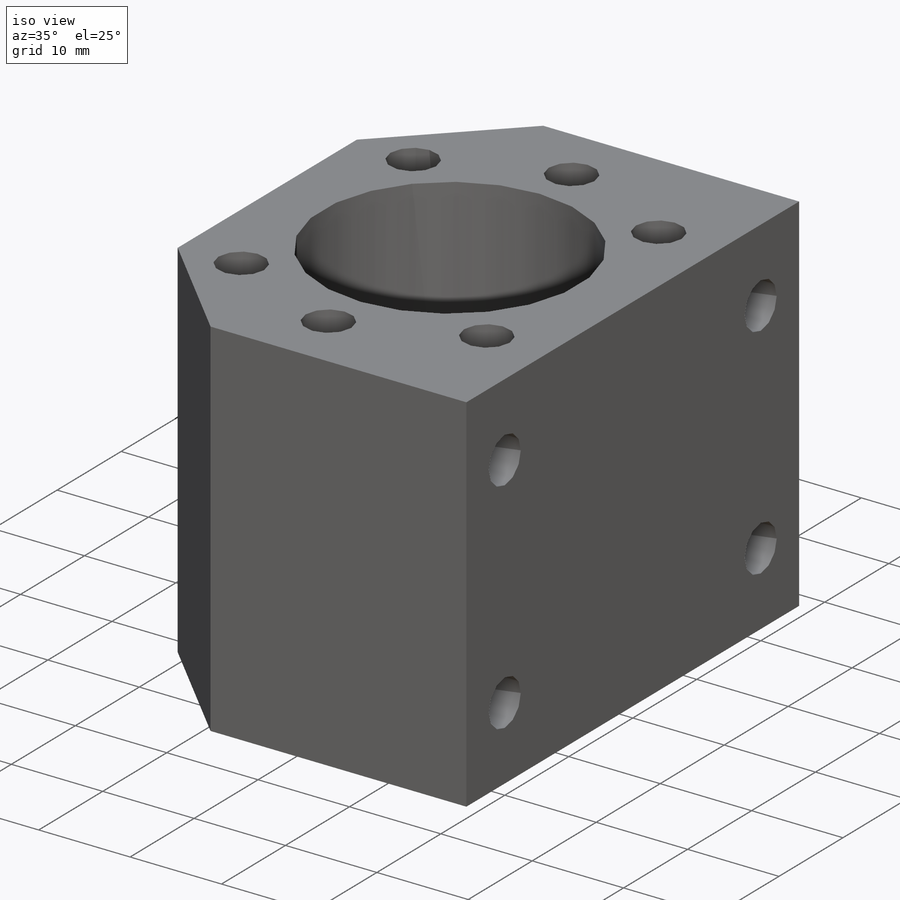
[diagram: iso view]
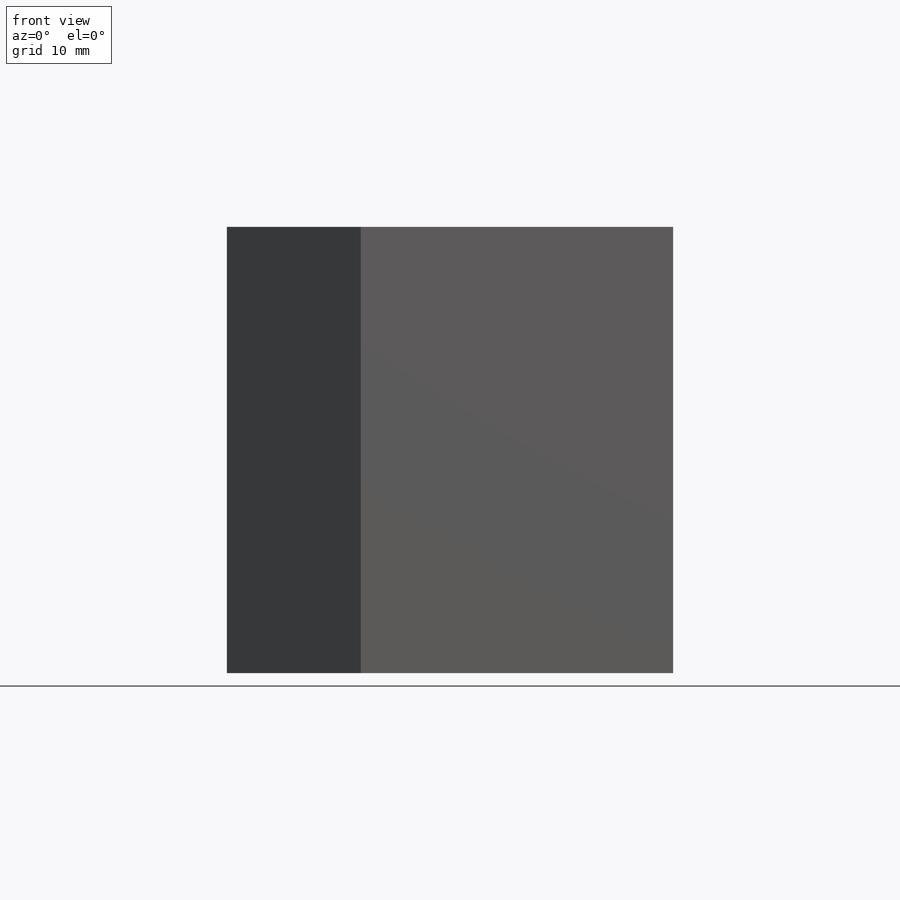
[diagram: front view]
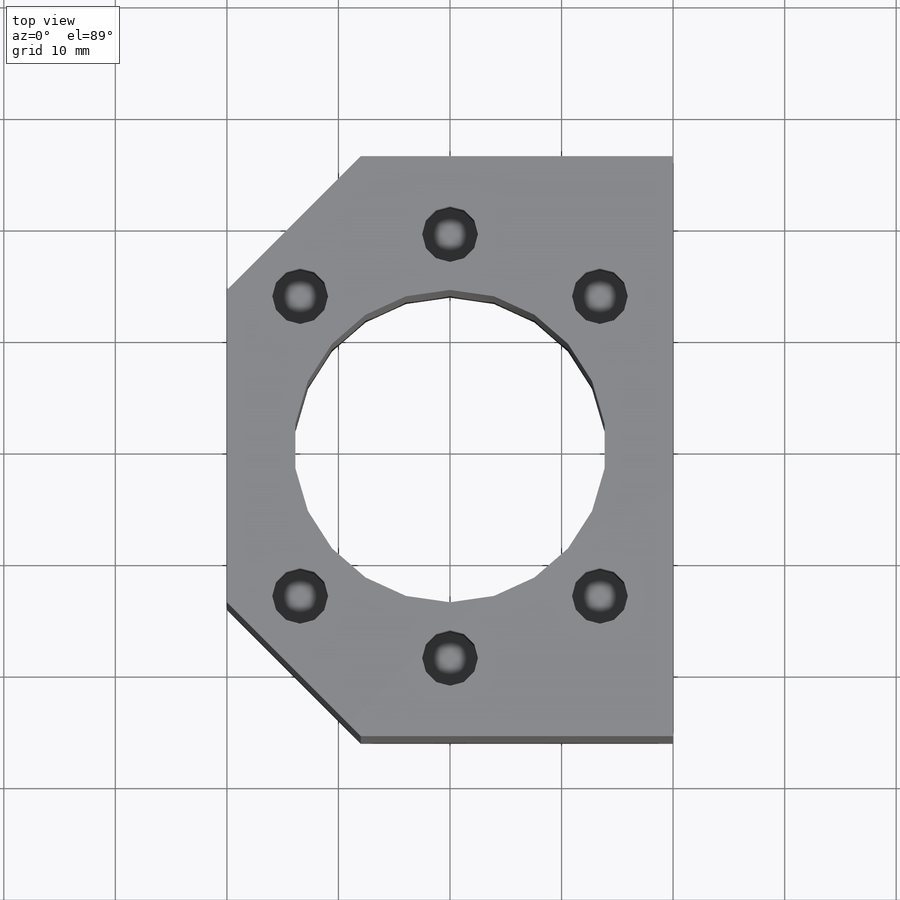
[diagram: top view]
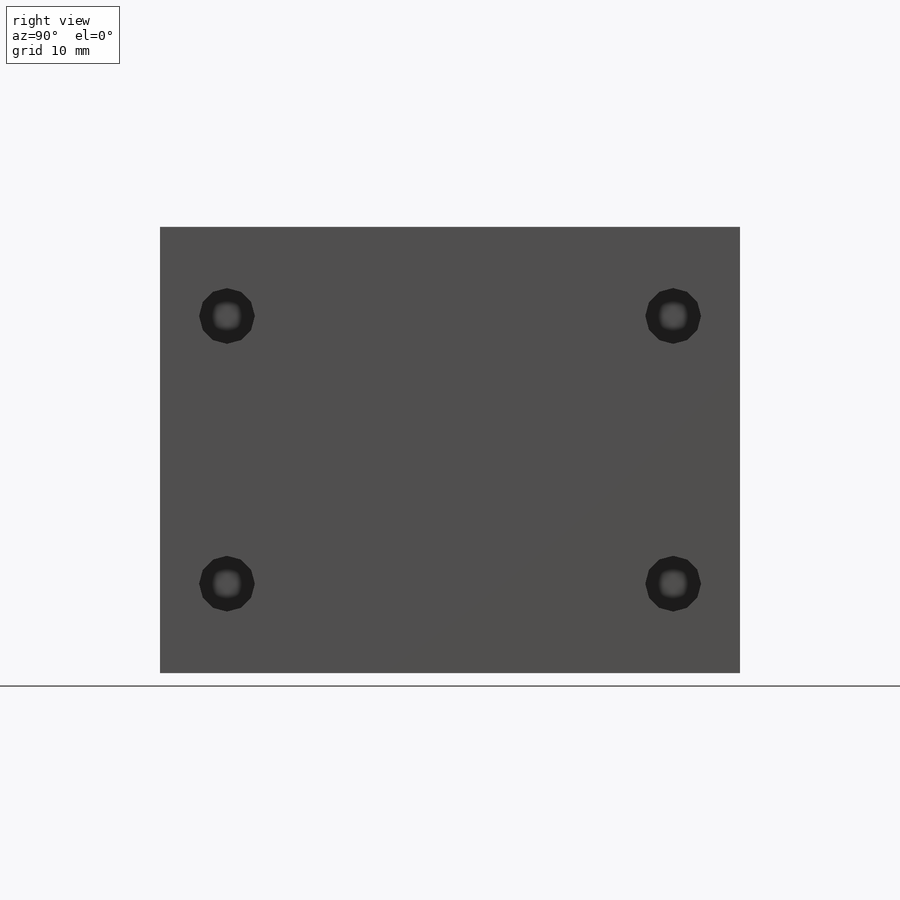
[diagram: right view]
SOLIDWORKS PART (.sldprt)
format: sldprt  version: not decoded by parser v0  size: 246,272 bytes
history: native  units: mm
features: plane x3, sketch x3, cut_extrude x2, material x1, extrude x1 (+9 scaffold rows collapsed)
feature tree (19):
  scaffold x9  (default folders/planes/origin — collapsed)
  material  "Материал <не указан>"
  plane  "Спереди"
  plane  "Сверху"
  plane  "Справа"
  sketch  "Эскиз1"  dims[c1.D3=28.0mm c1.D1=52.0mm c1.D2=40.0mm c2.D1=52.0mm c2.D2=40.0mm]
  extrude  "Бобышка-Вытянуть1"  Depth=40mm
  sketch  "Эскиз2"  dims[D1=38.0mm D2=5.0mm D4=~26.870058mm D3=8.0]
  cut_extrude  "Вырез-Вытянуть1"  Depth=10mm
  sketch  "Эскиз3"  dims[c1.D3=5.0mm c1.D4=5.0mm c1.D5=5.0mm c1.D6=5.0mm c1.D1=24.0mm c1.D2=40.0mm c2.D1=24.0mm c2.D2=40.0mm]
  cut_extrude  "Вырез-Вытянуть2"  Depth=10mm
decode coverage: 6 of 6 modeling features carry decoded parameters
note: ~ marks probable driven/reference dimensions
note: suppression state not decoded; provenance and decode notes live in map.json
